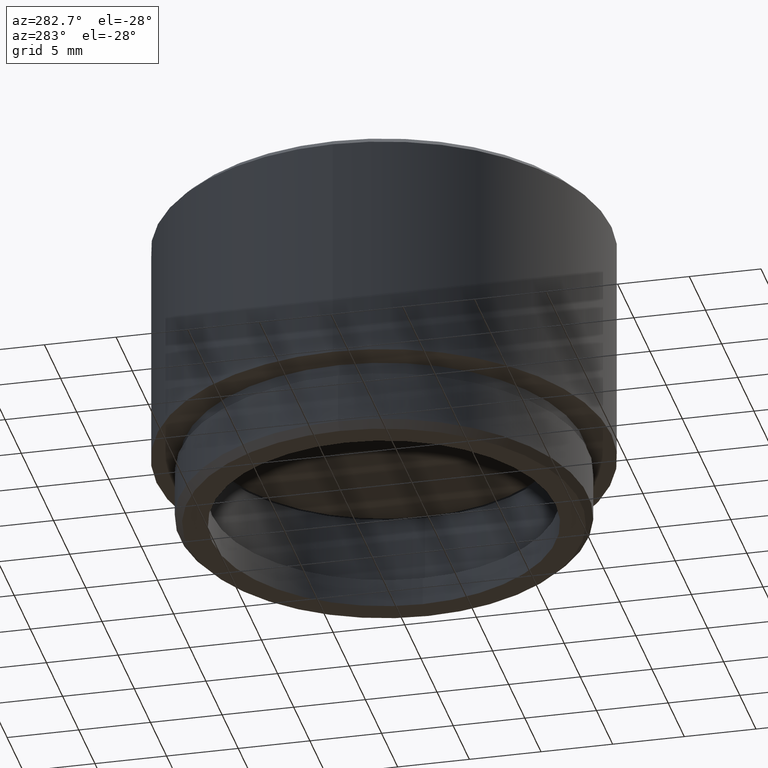
[diagram: clean part render]
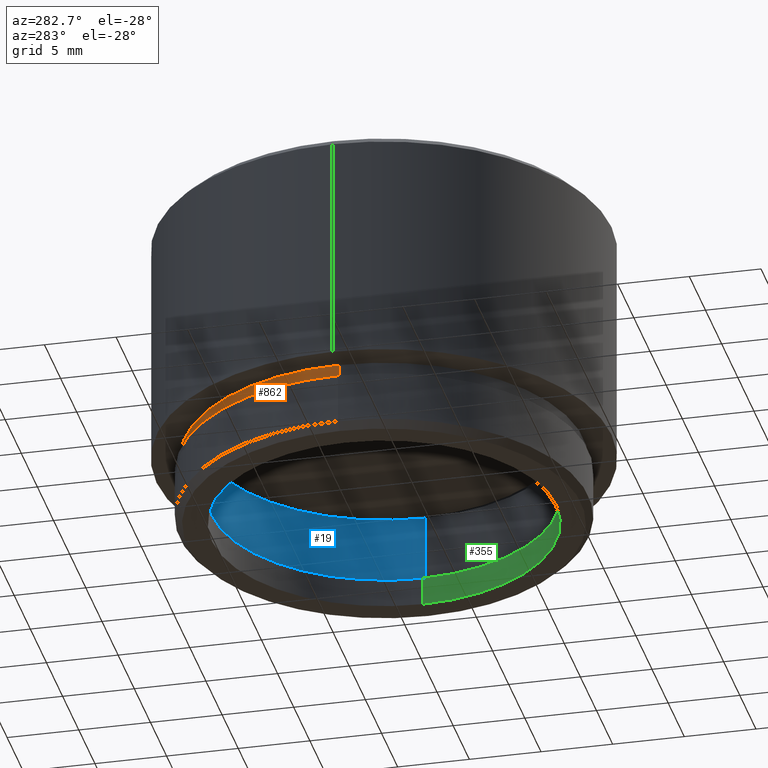
[diagram: same view with three faces highlighted in distinct colors, each labeled with its STEP entity id]
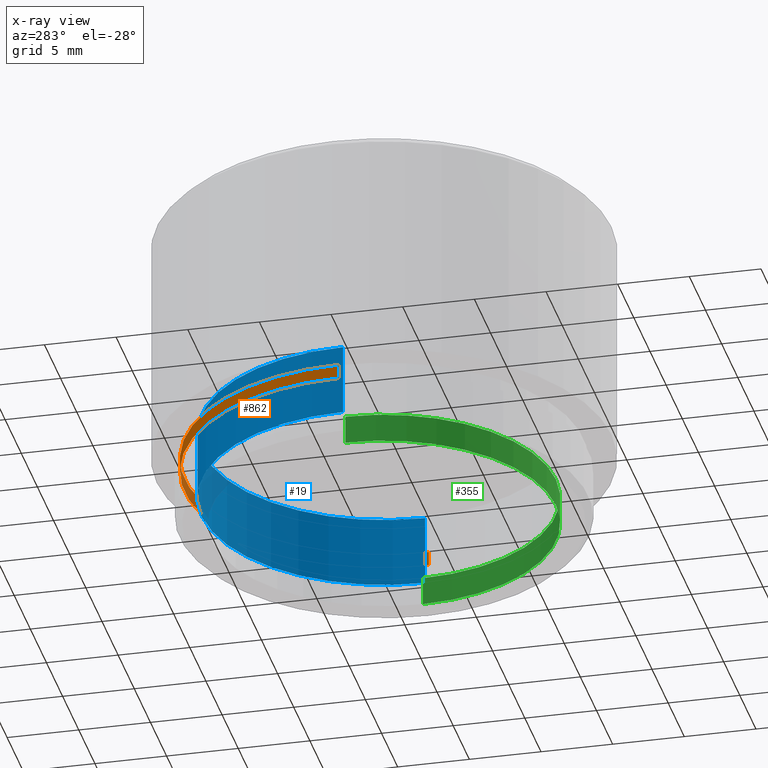
[diagram: x-ray of the same camera — body ghosted, the three highlighted faces saturated]
A machine part, auxiliary view with three faces highlighted in distinct colors.
The next image is the same camera in x-ray (body ghosted, the three faces saturated) — at least one of them is partly hidden behind the body in this view.
Their STEP definitions:

[orange] entity #862 — the highlighted cylindrical surface (partial cylindrical patch) has radius 13.9 mm, axis along (0, 0, 1).
#105 = VECTOR ( 'NONE', #206, 1000.000000000000000 ) ;
#120 = DIRECTION ( 'NONE',  ( 0.000000000000000000, 0.000000000000000000, -1.000000000000000000 ) ) ;
#189 = DIRECTION ( 'NONE',  ( 1.000000000000000000, 0.000000000000000000, 0.000000000000000000 ) ) ;
#206 = DIRECTION ( 'NONE',  ( 0.000000000000000000, 0.000000000000000000, 1.000000000000000000 ) ) ;
#327 = VERTEX_POINT ( 'NONE', #486 ) ;
#333 = DIRECTION ( 'NONE',  ( 0.000000000000000000, 0.000000000000000000, 1.000000000000000000 ) ) ;
#343 = CARTESIAN_POINT ( 'NONE',  ( 0.000000000000000000, 0.000000000000000000, 4.000000000000000000 ) ) ;
#376 = EDGE_CURVE ( 'NONE', #327, #923, #1400, .T. ) ;
#442 = DIRECTION ( 'NONE',  ( 0.000000000000000000, 0.000000000000000000, 1.000000000000000000 ) ) ;
#486 = CARTESIAN_POINT ( 'NONE',  ( -13.90000000000000036, 1.702259050814821084E-15, 5.000000000000000000 ) ) ;
#503 = ORIENTED_EDGE ( 'NONE', *, *, #376, .T. ) ;
#524 = VERTEX_POINT ( 'NONE', #1679 ) ;
#553 = DIRECTION ( 'NONE',  ( -1.000000000000000000, 0.000000000000000000, 0.000000000000000000 ) ) ;
#591 = ORIENTED_EDGE ( 'NONE', *, *, #1637, .T. ) ;
#608 = EDGE_LOOP ( 'NONE', ( #699, #591, #503, #1363 ) ) ;
#635 = DIRECTION ( 'NONE',  ( 0.000000000000000000, 0.000000000000000000, -1.000000000000000000 ) ) ;
#640 = EDGE_CURVE ( 'NONE', #1420, #923, #1150, .T. ) ;
#659 = AXIS2_PLACEMENT_3D ( 'NONE', #343, #442, #189 ) ;
#668 = CARTESIAN_POINT ( 'NONE',  ( 0.000000000000000000, 0.000000000000000000, 4.000000000000000000 ) ) ;
#699 = ORIENTED_EDGE ( 'NONE', *, *, #730, .F. ) ;
#713 = CARTESIAN_POINT ( 'NONE',  ( 13.90000000000000036, 0.000000000000000000, 5.000000000000000000 ) ) ;
#730 = EDGE_CURVE ( 'NONE', #524, #1420, #1274, .T. ) ;
#738 = LINE ( 'NONE', #1379, #1474 ) ;
#836 = FACE_OUTER_BOUND ( 'NONE', #608, .T. ) ;
#862 = ADVANCED_FACE ( 'NONE', ( #836 ), #1514, .T. ) ;
#923 = VERTEX_POINT ( 'NONE', #713 ) ;
#1150 = LINE ( 'NONE', #1380, #105 ) ;
#1155 = DIRECTION ( 'NONE',  ( -1.000000000000000000, 0.000000000000000000, 0.000000000000000000 ) ) ;
#1274 = CIRCLE ( 'NONE', #1584, 13.90000000000000036 ) ;
#1363 = ORIENTED_EDGE ( 'NONE', *, *, #640, .F. ) ;
#1379 = CARTESIAN_POINT ( 'NONE',  ( -13.90000000000000036, 1.702259050814821084E-15, 4.000000000000000000 ) ) ;
#1380 = CARTESIAN_POINT ( 'NONE',  ( 13.90000000000000036, 0.000000000000000000, 4.000000000000000000 ) ) ;
#1400 = CIRCLE ( 'NONE', #1425, 13.90000000000000036 ) ;
#1420 = VERTEX_POINT ( 'NONE', #1563 ) ;
#1425 = AXIS2_PLACEMENT_3D ( 'NONE', #1556, #635, #1155 ) ;
#1474 = VECTOR ( 'NONE', #333, 1000.000000000000000 ) ;
#1514 = CYLINDRICAL_SURFACE ( 'NONE', #659, 13.90000000000000036 ) ;
#1556 = CARTESIAN_POINT ( 'NONE',  ( 0.000000000000000000, 0.000000000000000000, 5.000000000000000000 ) ) ;
#1563 = CARTESIAN_POINT ( 'NONE',  ( 13.90000000000000036, 0.000000000000000000, 4.000000000000000000 ) ) ;
#1584 = AXIS2_PLACEMENT_3D ( 'NONE', #668, #120, #553 ) ;
#1637 = EDGE_CURVE ( 'NONE', #524, #327, #738, .T. ) ;
#1679 = CARTESIAN_POINT ( 'NONE',  ( -13.90000000000000036, 1.702259050814821084E-15, 4.000000000000000000 ) ) ;

[blue] entity #19 — the highlighted cylindrical surface (partial cylindrical patch) has radius 12.7 mm, axis along (0, 0, 1).
#19 = ADVANCED_FACE ( 'NONE', ( #325 ), #68, .F. ) ;
#22 = AXIS2_PLACEMENT_3D ( 'NONE', #1006, #736, #600 ) ;
#53 = DIRECTION ( 'NONE',  ( 1.000000000000000000, 0.000000000000000000, 0.000000000000000000 ) ) ;
#68 = CYLINDRICAL_SURFACE ( 'NONE', #1156, 12.69999999999999929 ) ;
#78 = VECTOR ( 'NONE', #714, 1000.000000000000000 ) ;
#113 = EDGE_CURVE ( 'NONE', #1517, #791, #453, .T. ) ;
#163 = DIRECTION ( 'NONE',  ( 1.000000000000000000, 0.000000000000000000, 0.000000000000000000 ) ) ;
#205 = EDGE_CURVE ( 'NONE', #539, #1141, #1488, .T. ) ;
#218 = EDGE_CURVE ( 'NONE', #1141, #791, #528, .T. ) ;
#232 = AXIS2_PLACEMENT_3D ( 'NONE', #594, #1339, #163 ) ;
#275 = ORIENTED_EDGE ( 'NONE', *, *, #205, .T. ) ;
#315 = CARTESIAN_POINT ( 'NONE',  ( 12.69999999999999929, 0.000000000000000000, 1.999999999999997335 ) ) ;
#325 = FACE_OUTER_BOUND ( 'NONE', #557, .T. ) ;
#452 = CARTESIAN_POINT ( 'NONE',  ( -12.69999999999999929, 1.555301434917138433E-15, 6.999999999999997335 ) ) ;
#453 = LINE ( 'NONE', #546, #1079 ) ;
#528 = CIRCLE ( 'NONE', #22, 12.69999999999999929 ) ;
#539 = VERTEX_POINT ( 'NONE', #1017 ) ;
#546 = CARTESIAN_POINT ( 'NONE',  ( -12.69999999999999929, 1.555301434917138433E-15, 1.999999999999997335 ) ) ;
#557 = EDGE_LOOP ( 'NONE', ( #914, #1432, #275, #1327 ) ) ;
#594 = CARTESIAN_POINT ( 'NONE',  ( 0.000000000000000000, 0.000000000000000000, 1.999999999999997335 ) ) ;
#600 = DIRECTION ( 'NONE',  ( 1.000000000000000000, 0.000000000000000000, 0.000000000000000000 ) ) ;
#679 = DIRECTION ( 'NONE',  ( -0.000000000000000000, -0.000000000000000000, 1.000000000000000000 ) ) ;
#706 = CIRCLE ( 'NONE', #232, 12.69999999999999929 ) ;
#714 = DIRECTION ( 'NONE',  ( -0.000000000000000000, -0.000000000000000000, 1.000000000000000000 ) ) ;
#736 = DIRECTION ( 'NONE',  ( 0.000000000000000000, 0.000000000000000000, 1.000000000000000000 ) ) ;
#791 = VERTEX_POINT ( 'NONE', #452 ) ;
#914 = ORIENTED_EDGE ( 'NONE', *, *, #113, .F. ) ;
#954 = CARTESIAN_POINT ( 'NONE',  ( -12.69999999999999929, 1.555301434917138433E-15, 1.999999999999997335 ) ) ;
#1006 = CARTESIAN_POINT ( 'NONE',  ( 0.000000000000000000, 0.000000000000000000, 6.999999999999997335 ) ) ;
#1017 = CARTESIAN_POINT ( 'NONE',  ( 12.69999999999999929, 0.000000000000000000, 1.999999999999997335 ) ) ;
#1079 = VECTOR ( 'NONE', #679, 1000.000000000000000 ) ;
#1113 = DIRECTION ( 'NONE',  ( -0.000000000000000000, -0.000000000000000000, 1.000000000000000000 ) ) ;
#1141 = VERTEX_POINT ( 'NONE', #1511 ) ;
#1143 = EDGE_CURVE ( 'NONE', #539, #1517, #706, .T. ) ;
#1156 = AXIS2_PLACEMENT_3D ( 'NONE', #1505, #1113, #53 ) ;
#1327 = ORIENTED_EDGE ( 'NONE', *, *, #218, .T. ) ;
#1339 = DIRECTION ( 'NONE',  ( 0.000000000000000000, 0.000000000000000000, 1.000000000000000000 ) ) ;
#1432 = ORIENTED_EDGE ( 'NONE', *, *, #1143, .F. ) ;
#1488 = LINE ( 'NONE', #315, #78 ) ;
#1505 = CARTESIAN_POINT ( 'NONE',  ( 0.000000000000000000, 0.000000000000000000, 1.999999999999997335 ) ) ;
#1511 = CARTESIAN_POINT ( 'NONE',  ( 12.69999999999999929, 0.000000000000000000, 6.999999999999997335 ) ) ;
#1517 = VERTEX_POINT ( 'NONE', #954 ) ;

[green] entity #355 — the highlighted cylindrical surface (partial cylindrical patch) has radius 12 mm, axis along (-0, -0, -1).
#12 = DIRECTION ( 'NONE',  ( 1.000000000000000000, 0.000000000000000000, 0.000000000000000000 ) ) ;
#27 = CARTESIAN_POINT ( 'NONE',  ( 12.00000000000000178, 1.469576158976824144E-15, 21.50000000000000000 ) ) ;
#48 = FACE_OUTER_BOUND ( 'NONE', #1452, .T. ) ;
#74 = CARTESIAN_POINT ( 'NONE',  ( 0.000000000000000000, 0.000000000000000000, 1.999999999999998224 ) ) ;
#91 = EDGE_CURVE ( 'NONE', #1701, #454, #1326, .T. ) ;
#119 = CARTESIAN_POINT ( 'NONE',  ( -12.00000000000000178, 0.000000000000000000, 1.999999999999998224 ) ) ;
#148 = DIRECTION ( 'NONE',  ( -0.000000000000000000, -0.000000000000000000, -1.000000000000000000 ) ) ;
#273 = AXIS2_PLACEMENT_3D ( 'NONE', #74, #378, #998 ) ;
#298 = CARTESIAN_POINT ( 'NONE',  ( -12.00000000000000178, 0.000000000000000000, 0.000000000000000000 ) ) ;
#330 = DIRECTION ( 'NONE',  ( -0.000000000000000000, -0.000000000000000000, -1.000000000000000000 ) ) ;
#341 = VECTOR ( 'NONE', #1669, 1000.000000000000000 ) ;
#355 = ADVANCED_FACE ( 'NONE', ( #48 ), #1099, .F. ) ;
#367 = EDGE_CURVE ( 'NONE', #1073, #1137, #1109, .T. ) ;
#378 = DIRECTION ( 'NONE',  ( 0.000000000000000000, 0.000000000000000000, 1.000000000000000000 ) ) ;
#454 = VERTEX_POINT ( 'NONE', #890 ) ;
#633 = ORIENTED_EDGE ( 'NONE', *, *, #999, .F. ) ;
#788 = DIRECTION ( 'NONE',  ( 0.000000000000000000, 0.000000000000000000, 1.000000000000000000 ) ) ;
#853 = DIRECTION ( 'NONE',  ( -1.000000000000000000, 0.000000000000000000, 0.000000000000000000 ) ) ;
#890 = CARTESIAN_POINT ( 'NONE',  ( 12.00000000000000178, 1.469576158976824144E-15, 0.000000000000000000 ) ) ;
#919 = CARTESIAN_POINT ( 'NONE',  ( 0.000000000000000000, 0.000000000000000000, 0.000000000000000000 ) ) ;
#931 = CIRCLE ( 'NONE', #273, 12.00000000000000178 ) ;
#979 = CARTESIAN_POINT ( 'NONE',  ( 0.000000000000000000, 0.000000000000000000, 21.50000000000000000 ) ) ;
#981 = CARTESIAN_POINT ( 'NONE',  ( 12.00000000000000178, 1.469576158976824144E-15, 1.999999999999998224 ) ) ;
#998 = DIRECTION ( 'NONE',  ( 1.000000000000000000, 0.000000000000000000, 0.000000000000000000 ) ) ;
#999 = EDGE_CURVE ( 'NONE', #1137, #454, #1027, .T. ) ;
#1027 = CIRCLE ( 'NONE', #1657, 12.00000000000000178 ) ;
#1064 = ORIENTED_EDGE ( 'NONE', *, *, #1291, .T. ) ;
#1070 = AXIS2_PLACEMENT_3D ( 'NONE', #979, #330, #853 ) ;
#1073 = VERTEX_POINT ( 'NONE', #119 ) ;
#1099 = CYLINDRICAL_SURFACE ( 'NONE', #1070, 12.00000000000000178 ) ;
#1109 = LINE ( 'NONE', #1640, #341 ) ;
#1137 = VERTEX_POINT ( 'NONE', #298 ) ;
#1149 = ORIENTED_EDGE ( 'NONE', *, *, #367, .F. ) ;
#1291 = EDGE_CURVE ( 'NONE', #1073, #1701, #931, .T. ) ;
#1326 = LINE ( 'NONE', #27, #1682 ) ;
#1452 = EDGE_LOOP ( 'NONE', ( #1064, #1558, #633, #1149 ) ) ;
#1558 = ORIENTED_EDGE ( 'NONE', *, *, #91, .T. ) ;
#1640 = CARTESIAN_POINT ( 'NONE',  ( -12.00000000000000178, 0.000000000000000000, 21.50000000000000000 ) ) ;
#1657 = AXIS2_PLACEMENT_3D ( 'NONE', #919, #788, #12 ) ;
#1669 = DIRECTION ( 'NONE',  ( -0.000000000000000000, -0.000000000000000000, -1.000000000000000000 ) ) ;
#1682 = VECTOR ( 'NONE', #148, 1000.000000000000000 ) ;
#1701 = VERTEX_POINT ( 'NONE', #981 ) ;